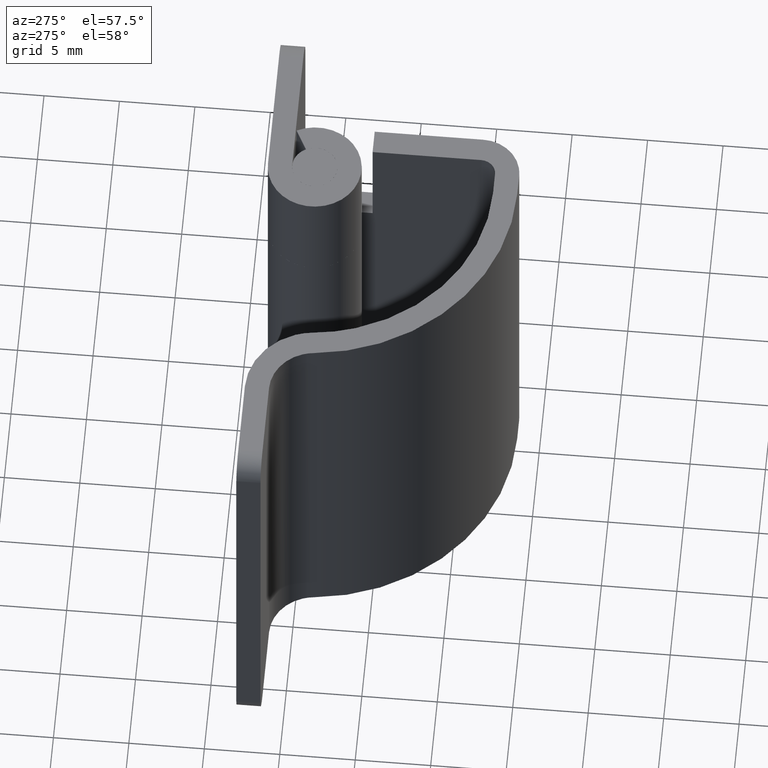
[diagram: clean part render]
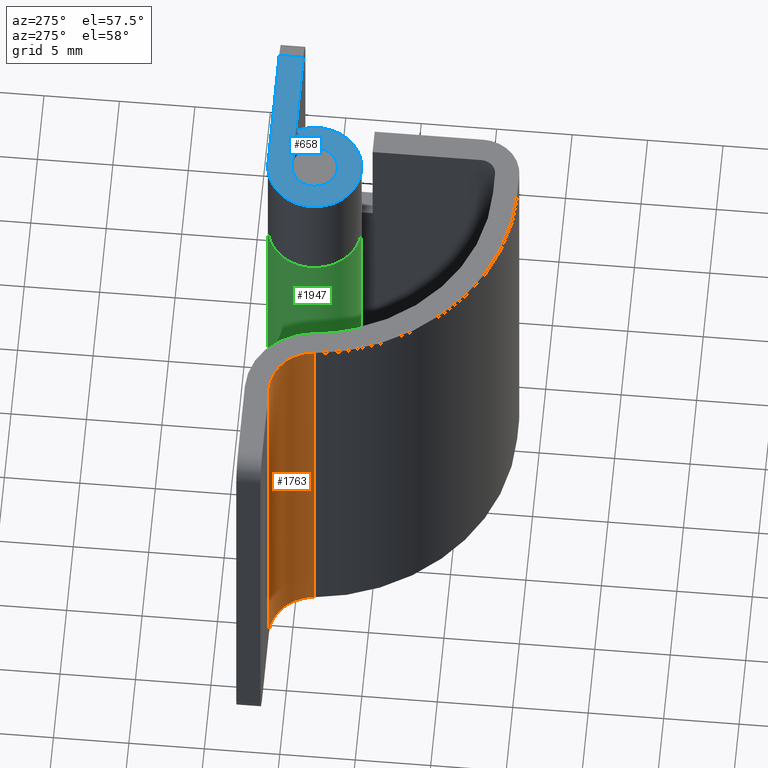
[diagram: same view with three faces highlighted in distinct colors, each labeled with its STEP entity id]
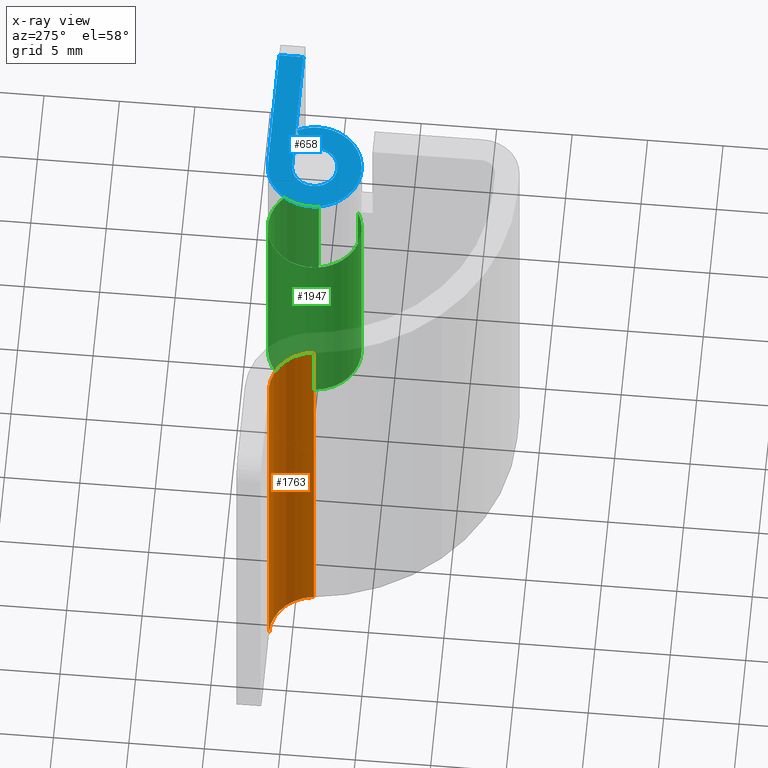
[diagram: x-ray of the same camera — body ghosted, the three highlighted faces saturated]
A machine part, auxiliary view with three faces highlighted in distinct colors.
The next image is the same camera in x-ray (body ghosted, the three faces saturated) — at least one of them is partly hidden behind the body in this view.
Their STEP definitions:

[orange] entity #1763 — the highlighted face is a freeform B-spline surface patch.
#1672=CARTESIAN_POINT('',(-18.013966576097701,-1.210843734939760,30.0));
#1673=VERTEX_POINT('',#1672);
#1687=CARTESIAN_POINT('',(-18.013966576097701,-1.210843734939760,0.0));
#1688=VERTEX_POINT('',#1687);
#1689=CARTESIAN_POINT('',(-18.013966576097701,-1.210843734939760,0.0));
#1690=CARTESIAN_POINT('',(-18.013966576097701,-1.210843734939760,30.0));
#1691=QUASI_UNIFORM_CURVE('',1,(#1689,#1690),.UNSPECIFIED.,.F.,.U.);
#1692=EDGE_CURVE('',#1688,#1673,#1691,.T.);
#1711=CARTESIAN_POINT('',(-21.026178442026119,1.499885769192513,-0.750000000000001));
#1712=CARTESIAN_POINT('',(-21.026178442026119,1.499885769192513,30.768750000000001));
#1713=CARTESIAN_POINT('',(-18.129222429013431,1.525167121313719,-0.750000000000001));
#1714=CARTESIAN_POINT('',(-18.129222429013431,1.525167121313719,30.768750000000004));
#1715=CARTESIAN_POINT('',(-18.002854170785429,-1.369141837903991,-0.750000000000001));
#1716=CARTESIAN_POINT('',(-18.002854170785429,-1.369141837903991,30.768750000000001));
#1724=(BOUNDED_SURFACE()B_SPLINE_SURFACE(1,2,((#1711,#1713,#1715),(#1712,#1714,#1716)),.UNSPECIFIED.,.F.,.F.,.U.)B_SPLINE_SURFACE_WITH_KNOTS((2,2),(3,3),(0.0,31.518750000000001),(0.0,4.848314710021881),.UNSPECIFIED.)GEOMETRIC_REPRESENTATION_ITEM()RATIONAL_B_SPLINE_SURFACE(((1.0,0.719339800338651,1.0),(1.0,0.719339800338651,1.0)))REPRESENTATION_ITEM('')SURFACE());
#1725=CARTESIAN_POINT('',(-20.999998835530999,1.500000000000000,30.0));
#1726=VERTEX_POINT('',#1725);
#1727=CARTESIAN_POINT('',(-20.999998835530999,1.500000000000000,30.0));
#1728=CARTESIAN_POINT('',(-18.276474607308945,1.500000000000000,30.0));
#1729=CARTESIAN_POINT('',(-18.013966576097690,-1.210843734939759,30.0));
#1737=(BOUNDED_CURVE()B_SPLINE_CURVE(2,(#1727,#1728,#1729),.UNSPECIFIED.,.F.,.U.)CURVE()GEOMETRIC_REPRESENTATION_ITEM()QUASI_UNIFORM_CURVE()RATIONAL_B_SPLINE_CURVE((1.0,0.740400371990299,1.0))REPRESENTATION_ITEM(''));
#1738=EDGE_CURVE('',#1726,#1673,#1737,.T.);
#1739=ORIENTED_EDGE('',*,*,#1738,.F.);
#1740=CARTESIAN_POINT('',(-20.999998835530999,1.500000000000000,0.0));
#1741=VERTEX_POINT('',#1740);
#1742=CARTESIAN_POINT('',(-20.999998835530999,1.500000000000000,0.0));
#1743=CARTESIAN_POINT('',(-20.999998835530999,1.500000000000000,30.0));
#1744=QUASI_UNIFORM_CURVE('',1,(#1742,#1743),.UNSPECIFIED.,.F.,.U.);
#1745=EDGE_CURVE('',#1741,#1726,#1744,.T.);
#1746=ORIENTED_EDGE('',*,*,#1745,.F.);
#1747=CARTESIAN_POINT('',(-20.999998835530999,1.500000000000000,0.0));
#1748=CARTESIAN_POINT('',(-18.276474607308945,1.500000000000000,0.0));
#1749=CARTESIAN_POINT('',(-18.013966576097690,-1.210843734939759,0.0));
#1757=(BOUNDED_CURVE()B_SPLINE_CURVE(2,(#1747,#1748,#1749),.UNSPECIFIED.,.F.,.U.)CURVE()GEOMETRIC_REPRESENTATION_ITEM()QUASI_UNIFORM_CURVE()RATIONAL_B_SPLINE_CURVE((1.0,0.740400371990299,1.0))REPRESENTATION_ITEM(''));
#1758=EDGE_CURVE('',#1741,#1688,#1757,.T.);
#1759=ORIENTED_EDGE('',*,*,#1758,.T.);
#1760=ORIENTED_EDGE('',*,*,#1692,.T.);
#1761=EDGE_LOOP('',(#1739,#1746,#1759,#1760));
#1762=FACE_OUTER_BOUND('',#1761,.T.);
#1763=ADVANCED_FACE('',(#1762),#1724,.F.);

[blue] entity #658 — the highlighted face is a freeform B-spline surface patch.
#481=CARTESIAN_POINT('',(5.0,3.099998000000000,30.0));
#482=VERTEX_POINT('',#481);
#498=CARTESIAN_POINT('',(5.0,1.500000000000000,30.0));
#499=VERTEX_POINT('',#498);
#500=CARTESIAN_POINT('',(5.0,1.500000000000000,30.0));
#501=CARTESIAN_POINT('',(5.0,3.099998000000000,30.0));
#502=QUASI_UNIFORM_CURVE('',1,(#500,#501),.UNSPECIFIED.,.F.,.U.);
#503=EDGE_CURVE('',#499,#482,#502,.T.);
#589=CARTESIAN_POINT('',(-7.179191135187454,-3.408860455943649,30.0));
#590=CARTESIAN_POINT('',(5.579409401772796,-3.408860455943649,30.0));
#591=CARTESIAN_POINT('',(-7.179191135187454,3.409648595209590,30.0));
#592=CARTESIAN_POINT('',(5.579409401772796,3.409648595209590,30.0));
#593=B_SPLINE_SURFACE_WITH_KNOTS('',1,1,((#589,#591),(#590,#592)),.UNSPECIFIED.,.F.,.F.,.U.,(2,2),(2,2),(0.0,12.758600536960250),(0.0,6.818509051153239),.UNSPECIFIED.);
#594=CARTESIAN_POINT('',(-3.499999999999901,1.500000000000000,30.0));
#595=VERTEX_POINT('',#594);
#596=CARTESIAN_POINT('',(5.0,1.500000000000000,30.0));
#597=CARTESIAN_POINT('',(-3.499999999999901,1.500000000000000,30.0));
#598=QUASI_UNIFORM_CURVE('',1,(#596,#597),.UNSPECIFIED.,.F.,.U.);
#599=EDGE_CURVE('',#499,#595,#598,.T.);
#600=ORIENTED_EDGE('',*,*,#599,.F.);
#601=ORIENTED_EDGE('',*,*,#503,.T.);
#602=CARTESIAN_POINT('',(-3.496478637194680,3.099998000000000,30.0));
#603=VERTEX_POINT('',#602);
#604=CARTESIAN_POINT('',(-3.496478637194680,3.099998000000000,30.0));
#605=CARTESIAN_POINT('',(5.0,3.099998000000000,30.0));
#606=QUASI_UNIFORM_CURVE('',1,(#604,#605),.UNSPECIFIED.,.F.,.U.);
#607=EDGE_CURVE('',#603,#482,#606,.T.);
#608=ORIENTED_EDGE('',*,*,#607,.F.);
#609=CARTESIAN_POINT('',(-0.760018248235850,1.450000000000000,30.0));
#610=VERTEX_POINT('',#609);
#611=CARTESIAN_POINT('',(-0.760018248235850,1.450000000000002,30.0));
#612=CARTESIAN_POINT('',(0.342352259281444,-0.633086258124314,30.0));
#613=CARTESIAN_POINT('',(-1.370044666426915,-2.252396562993291,30.0));
#614=CARTESIAN_POINT('',(-3.082441592135274,-3.871706867862268,30.0));
#615=CARTESIAN_POINT('',(-5.100726611546611,-2.654745621540072,30.0));
#616=CARTESIAN_POINT('',(-7.119011630957947,-1.437784375217877,30.0));
#617=CARTESIAN_POINT('',(-6.486140433580659,0.832445380150624,30.0));
#618=CARTESIAN_POINT('',(-5.853269236203369,3.102675135519129,30.0));
#619=CARTESIAN_POINT('',(-3.496478637194683,3.099997999999999,30.0));
#627=(BOUNDED_CURVE()B_SPLINE_CURVE(2,(#611,#612,#613,#614,#615,#616,#617,#618,#619),.UNSPECIFIED.,.F.,.U.)B_SPLINE_CURVE_WITH_KNOTS((3,2,2,2,3),(0.0,0.250000000000000,0.500000000000000,0.750000000000000,1.0),.UNSPECIFIED.)CURVE()GEOMETRIC_REPRESENTATION_ITEM()RATIONAL_B_SPLINE_CURVE((1.0,0.796064190964140,1.0,0.796064190964140,1.0,0.796064190964140,1.0,0.796064190964140,1.0))REPRESENTATION_ITEM(''));
#628=EDGE_CURVE('',#610,#603,#627,.T.);
#629=ORIENTED_EDGE('',*,*,#628,.F.);
#630=CARTESIAN_POINT('',(-2.174202378178585,0.701612903225808,30.0));
#631=VERTEX_POINT('',#630);
#632=CARTESIAN_POINT('',(-2.174202378178585,0.701612903225808,30.0));
#633=CARTESIAN_POINT('',(-0.760018248235850,1.450000000000000,30.0));
#634=QUASI_UNIFORM_CURVE('',1,(#632,#633),.UNSPECIFIED.,.F.,.U.);
#635=EDGE_CURVE('',#631,#610,#634,.T.);
#636=ORIENTED_EDGE('',*,*,#635,.F.);
#637=CARTESIAN_POINT('',(-2.174202378178586,0.701612903225807,30.0));
#638=CARTESIAN_POINT('',(-1.640954479836941,-0.306035035134631,30.000000000000004));
#639=CARTESIAN_POINT('',(-2.469066990957008,-1.089576583295441,30.0));
#640=CARTESIAN_POINT('',(-3.297179502077074,-1.873118131456252,30.000000000000004));
#641=CARTESIAN_POINT('',(-4.273815431857295,-1.284994037892532,30.0));
#642=CARTESIAN_POINT('',(-5.250451361637513,-0.696869944328814,30.000000000000004));
#643=CARTESIAN_POINT('',(-4.945249296287361,0.401565027835592,30.0));
#644=CARTESIAN_POINT('',(-4.640047230937208,1.500000000000000,30.000000000000004));
#645=CARTESIAN_POINT('',(-3.499999999999901,1.500000000000000,30.0));
#653=(BOUNDED_CURVE()B_SPLINE_CURVE(2,(#637,#638,#639,#640,#641,#642,#643,#644,#645),.UNSPECIFIED.,.F.,.U.)B_SPLINE_CURVE_WITH_KNOTS((3,2,2,2,3),(0.0,0.250000000000000,0.500000000000000,0.750000000000000,1.0),.UNSPECIFIED.)CURVE()GEOMETRIC_REPRESENTATION_ITEM()RATIONAL_B_SPLINE_CURVE((1.0,0.796150117301085,1.0,0.796150117301085,1.0,0.796150117301085,1.0,0.796150117301085,1.0))REPRESENTATION_ITEM(''));
#654=EDGE_CURVE('',#631,#595,#653,.T.);
#655=ORIENTED_EDGE('',*,*,#654,.T.);
#656=EDGE_LOOP('',(#600,#601,#608,#629,#636,#655));
#657=FACE_OUTER_BOUND('',#656,.T.);
#658=ADVANCED_FACE('',(#657),#593,.T.);

[green] entity #1947 — the highlighted face is a freeform B-spline surface patch.
#1040=CARTESIAN_POINT('',(-0.400000999999904,0.002489979722980,22.500000000000000));
#1041=VERTEX_POINT('',#1040);
#1047=CARTESIAN_POINT('',(-2.050000000000000,-2.739981751764105,22.500000000000000));
#1048=VERTEX_POINT('',#1047);
#1049=CARTESIAN_POINT('',(-2.050000000000001,-2.739981751764105,22.500000000000000));
#1050=CARTESIAN_POINT('',(-4.132038426877675,-3.841797746351915,22.500000000000000));
#1051=CARTESIAN_POINT('',(-5.751363726320338,-2.131047013045126,22.500000000000000));
#1052=CARTESIAN_POINT('',(-7.370689025763001,-0.420296279738338,22.500000000000000));
#1053=CARTESIAN_POINT('',(-6.156296392442102,1.598151893750573,22.500000000000000));
#1054=CARTESIAN_POINT('',(-4.941903759121206,3.616600067239483,22.500000000000000));
#1055=CARTESIAN_POINT('',(-2.671898413865721,2.987347948104147,22.500000000000000));
#1056=CARTESIAN_POINT('',(-0.401893068610235,2.358095828968811,22.500000000000000));
#1057=CARTESIAN_POINT('',(-0.400000999999904,0.002489979722982,22.500000000000000));
#1065=(BOUNDED_CURVE()B_SPLINE_CURVE(2,(#1049,#1050,#1051,#1052,#1053,#1054,#1055,#1056,#1057),.UNSPECIFIED.,.F.,.U.)B_SPLINE_CURVE_WITH_KNOTS((3,2,2,2,3),(0.0,0.250000000000000,0.500000000000000,0.750000000000000,1.0),.UNSPECIFIED.)CURVE()GEOMETRIC_REPRESENTATION_ITEM()RATIONAL_B_SPLINE_CURVE((1.0,0.796210866707294,1.0,0.796210866707294,1.0,0.796210866707294,1.0,0.796210866707294,1.0))REPRESENTATION_ITEM(''));
#1066=EDGE_CURVE('',#1048,#1041,#1065,.T.);
#1109=CARTESIAN_POINT('',(-2.050000000000000,-2.739981751764105,7.500000000000000));
#1110=VERTEX_POINT('',#1109);
#1111=CARTESIAN_POINT('',(-0.400000999999904,0.002489979722980,7.500000000000000));
#1112=VERTEX_POINT('',#1111);
#1113=CARTESIAN_POINT('',(-2.050000000000001,-2.739981751764105,7.500000000000000));
#1114=CARTESIAN_POINT('',(-4.132038426877675,-3.841797746351915,7.500000000000000));
#1115=CARTESIAN_POINT('',(-5.751363726320338,-2.131047013045126,7.500000000000000));
#1116=CARTESIAN_POINT('',(-7.370689025763001,-0.420296279738338,7.500000000000000));
#1117=CARTESIAN_POINT('',(-6.156296392442102,1.598151893750573,7.500000000000000));
#1118=CARTESIAN_POINT('',(-4.941903759121206,3.616600067239483,7.500000000000000));
#1119=CARTESIAN_POINT('',(-2.671898413865721,2.987347948104147,7.500000000000000));
#1120=CARTESIAN_POINT('',(-0.401893068610235,2.358095828968811,7.500000000000000));
#1121=CARTESIAN_POINT('',(-0.400000999999904,0.002489979722982,7.500000000000000));
#1129=(BOUNDED_CURVE()B_SPLINE_CURVE(2,(#1113,#1114,#1115,#1116,#1117,#1118,#1119,#1120,#1121),.UNSPECIFIED.,.F.,.U.)B_SPLINE_CURVE_WITH_KNOTS((3,2,2,2,3),(0.0,0.250000000000000,0.500000000000000,0.750000000000000,1.0),.UNSPECIFIED.)CURVE()GEOMETRIC_REPRESENTATION_ITEM()RATIONAL_B_SPLINE_CURVE((1.0,0.796210866707294,1.0,0.796210866707294,1.0,0.796210866707294,1.0,0.796210866707294,1.0))REPRESENTATION_ITEM(''));
#1130=EDGE_CURVE('',#1110,#1112,#1129,.T.);
#1906=CARTESIAN_POINT('',(-2.050000000000000,-2.739981751764105,7.500000000000000));
#1907=CARTESIAN_POINT('',(-2.050000000000000,-2.739981751764105,22.500000000000000));
#1908=QUASI_UNIFORM_CURVE('',1,(#1906,#1907),.UNSPECIFIED.,.F.,.U.);
#1909=EDGE_CURVE('',#1110,#1048,#1908,.T.);
#1915=CARTESIAN_POINT('',(-1.971320288068045,-2.696875662378214,7.124999999999998));
#1916=CARTESIAN_POINT('',(-1.971320288068045,-2.696875662378214,22.884375000000009));
#1917=CARTESIAN_POINT('',(-5.262350264949836,-4.562341997070961,7.125000000000000));
#1918=CARTESIAN_POINT('',(-5.262350264949836,-4.562341997070961,22.884374999999999));
#1919=CARTESIAN_POINT('',(-6.444698878004447,-0.968890353899120,7.124999999999998));
#1920=CARTESIAN_POINT('',(-6.444698878004447,-0.968890353899120,22.884375000000009));
#1921=CARTESIAN_POINT('',(-7.627047491059058,2.624561289272721,7.125000000000000));
#1922=CARTESIAN_POINT('',(-7.627047491059058,2.624561289272721,22.884374999999999));
#1923=CARTESIAN_POINT('',(-3.871315232730592,3.077681757092853,7.124999999999998));
#1924=CARTESIAN_POINT('',(-3.871315232730592,3.077681757092853,22.884375000000009));
#1925=CARTESIAN_POINT('',(-0.115582974402127,3.530802224912984,7.125000000000000));
#1926=CARTESIAN_POINT('',(-0.115582974402127,3.530802224912984,22.884374999999999));
#1927=CARTESIAN_POINT('',(-0.409361900787096,-0.240740814350742,7.124999999999998));
#1928=CARTESIAN_POINT('',(-0.409361900787096,-0.240740814350742,22.884375000000009));
#1936=(BOUNDED_SURFACE()B_SPLINE_SURFACE(1,2,((#1915,#1917,#1919,#1921,#1923,#1925,#1927),(#1916,#1918,#1920,#1922,#1924,#1926,#1928)),.UNSPECIFIED.,.F.,.F.,.U.)B_SPLINE_SURFACE_WITH_KNOTS((2,2),(3,2,2,3),(0.0,15.759375000000009),(0.0,5.870281529289077,11.740563058578150,17.610844587867231),.UNSPECIFIED.)GEOMETRIC_REPRESENTATION_ITEM()RATIONAL_B_SPLINE_SURFACE(((1.0,0.633830967398710,1.0,0.633830967398710,1.0,0.633830967398710,1.0),(1.0,0.633830967398710,1.0,0.633830967398710,1.0,0.633830967398710,1.0)))REPRESENTATION_ITEM('')SURFACE());
#1937=ORIENTED_EDGE('',*,*,#1066,.T.);
#1938=CARTESIAN_POINT('',(-0.400000999999904,0.002489979722980,7.500000000000000));
#1939=CARTESIAN_POINT('',(-0.400000999999904,0.002489979722980,22.500000000000000));
#1940=QUASI_UNIFORM_CURVE('',1,(#1938,#1939),.UNSPECIFIED.,.F.,.U.);
#1941=EDGE_CURVE('',#1112,#1041,#1940,.T.);
#1942=ORIENTED_EDGE('',*,*,#1941,.F.);
#1943=ORIENTED_EDGE('',*,*,#1130,.F.);
#1944=ORIENTED_EDGE('',*,*,#1909,.T.);
#1945=EDGE_LOOP('',(#1937,#1942,#1943,#1944));
#1946=FACE_OUTER_BOUND('',#1945,.T.);
#1947=ADVANCED_FACE('',(#1946),#1936,.T.);